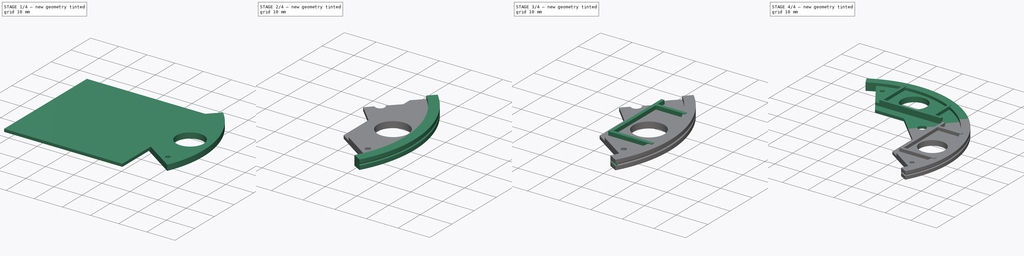
[diagram: build sequence overview — one tinted view per stage of 4, left to right]
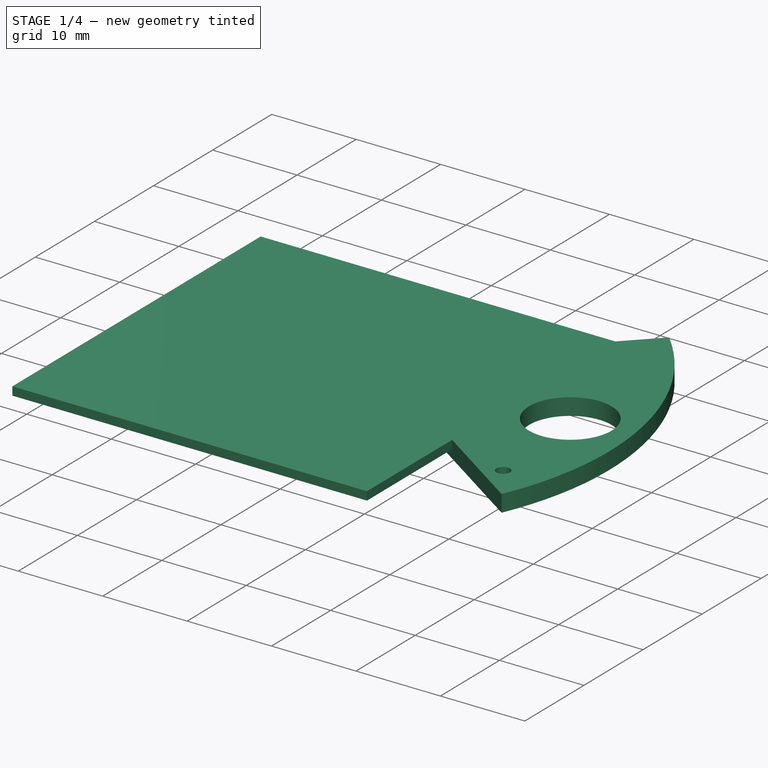
[diagram: stage 1 of 4 — iso view after this stage's code; geometry added in this stage tinted green]
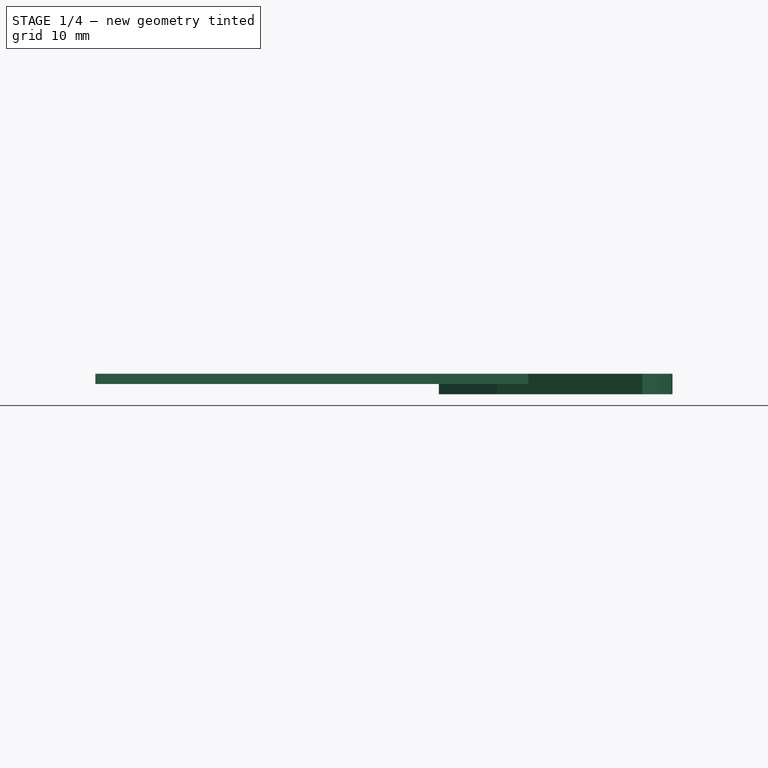
[diagram: stage 1 of 4 — front view after this stage's code; geometry added in this stage tinted green]
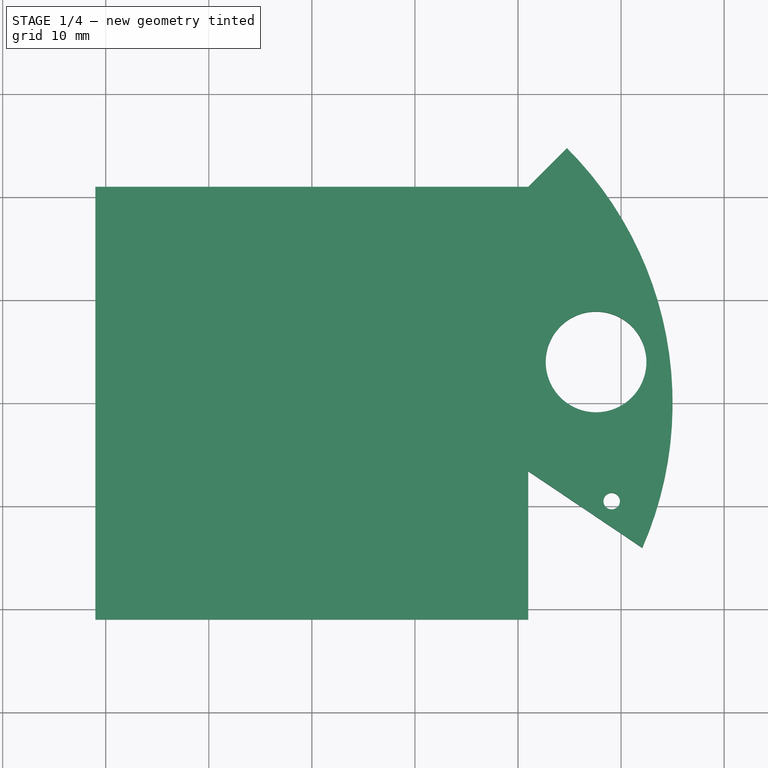
[diagram: stage 1 of 4 — top view after this stage's code; geometry added in this stage tinted green]
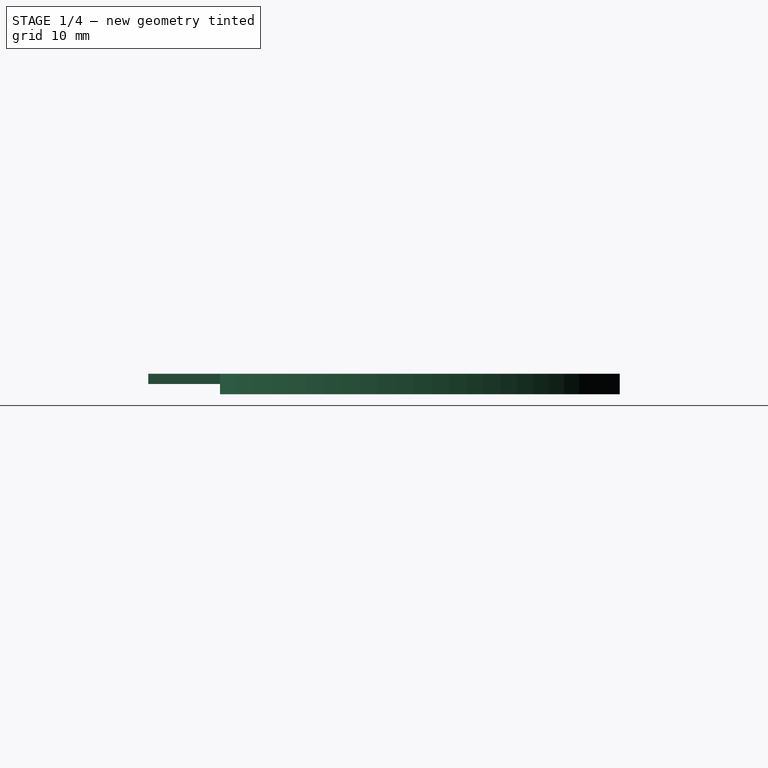
[diagram: stage 1 of 4 — right view after this stage's code; geometry added in this stage tinted green]
FCSTD DOCUMENT  (FreeCAD 0.16R6712 (Git))
Label: clicker3
License: All rights reserved
LicenseURL: http://en.wikipedia.org/wiki/All_rights_reserved
objects: Sketcher::SketchObject×6, PartDesign::Pad×3, Part::MultiFuse×2, Part::Sweep×1, Part::Cut×1, PartDesign::Pocket×1, Part::Mirroring×1
note: 19 computed .brp shape members not serialized (recipe doc carries the construction recipe); baked Part::Feature solids carry a one-line shape summary decoded from their .brp

FEATURE [Sketcher::SketchObject] Sketch003  label="support"
  sketch-geometry (13):
    g0: LineSegment [constr] StartX=-21 StartY=21 StartZ=0 EndX=21 EndY=21 EndZ=0
    g1: LineSegment [constr] StartX=21 StartY=21 StartZ=0 EndX=21 EndY=-21 EndZ=0
    g2: ArcOfCircle CenterX=0 CenterY=0 CenterZ=0 NormalX=0 NormalY=0 NormalZ=1 Radius=35 StartAngle=5.87062 EndAngle=7.06858
    g3: LineSegment StartX=32.0634 StartY=-14.0335 StartZ=0 EndX=18 EndY=-4.58453 EndZ=0
    g4: LineSegment StartX=18 StartY=-4.58453 StartZ=0 EndX=18 EndY=6.63604 EndZ=0
    g5: LineSegment StartX=24.7487 StartY=24.7487 StartZ=0 EndX=16.5607 EndY=16.5607 EndZ=0
    g6: ArcOfCircle CenterX=15.5 CenterY=15.5 CenterZ=0 NormalX=0 NormalY=0 NormalZ=1 Radius=1.5 StartAngle=3.92699 EndAngle=7.06858
    g7: LineSegment StartX=14.4393 StartY=14.4393 StartZ=0 EndX=12.318 EndY=12.318 EndZ=0
    g8: LineSegment [constr] StartX=16.5607 StartY=16.5607 StartZ=0 EndX=15.5 EndY=15.5 EndZ=0
    g9: LineSegment StartX=18 StartY=6.63604 StartZ=0 EndX=12.318 EndY=12.318 EndZ=0
    g10: LineSegment [constr] StartX=12.318 StartY=12.318 StartZ=0 EndX=0 EndY=0 EndZ=0
    g11: Circle CenterX=27.5756 CenterY=4 CenterZ=0 NormalX=0 NormalY=0 NormalZ=1 Radius=4.88561
    g12: Circle CenterX=29.0912 CenterY=-9.5051 CenterZ=0 NormalX=0 NormalY=0 NormalZ=1 Radius=0.8
  constraints (30):
    c: Coincident(g0,g1)
    c: Horizontal(g0)
    c: Symmetric(g0,g0,g-2)
    c: Symmetric(g0,g1,g-1)
    c: Equal(g0,g1)
    c: Coincident(g2,g-1)
    c: Radius(g2) = 35
    c: Coincident(g3,g2)
    c: DistanceX(g3,g1) = 3
    c: Vertical(g4)
    c: Coincident(g5,g2)
    c: Coincident(g6,g5)
    c: Radius(g6) = 1.5
    c: Coincident(g7,g6)
    c: Tangent(g5,g7)
    c: Coincident(g8,g5)
    c: Coincident(g8,g6)
    c: Tangent(g5,g8)
    c: DistanceX(g-1,g6) = 15.5
    c: Coincident(g3,g4)
    c: DistanceX(g-1,g0) = 21
    c: Coincident(g9,g4)
    c: Coincident(g7,g9)
    c: Coincident(g10,g7)
    c: Coincident(g10,g-1)
    c: Tangent(g10,g7)
    c: Angle(g-1,g10) = 0.785398
    c: Perpendicular(g10,g9)
    c: Distance(g7) = 3
    c: Radius(g12) = 0.8
FEATURE [PartDesign::Pad] Pad
  Length = 2
  Length2 = 100
  Reversed = true
  Sketch = -> Sketch003
  Type = 0
FEATURE [Sketcher::SketchObject] Sketch004
  sketch-geometry (4):
    g0: LineSegment StartX=-21 StartY=21 StartZ=0 EndX=21 EndY=21 EndZ=0
    g1: LineSegment StartX=21 StartY=21 StartZ=0 EndX=21 EndY=-21 EndZ=0
    g2: LineSegment StartX=21 StartY=-21 StartZ=0 EndX=-21 EndY=-21 EndZ=0
    g3: LineSegment StartX=-21 StartY=-21 StartZ=0 EndX=-21 EndY=21 EndZ=0
  constraints (12):
    c: Coincident(g0,g1)
    c: Coincident(g1,g2)
    c: Coincident(g2,g3)
    c: Coincident(g3,g0)
    c: Horizontal(g0)
    c: Horizontal(g2)
    c: Vertical(g1)
    c: Vertical(g3)
    c: Equal(g1,g2)
    c: Symmetric(g0,g0,g-2)
    c: Symmetric(g0,g1,g-1)
    c: DistanceX(g0,g0) = 42
FEATURE [PartDesign::Pad] Pad001
  Length = 1
  Length2 = 100
  Reversed = true
  Sketch = -> Sketch004
  Type = 0
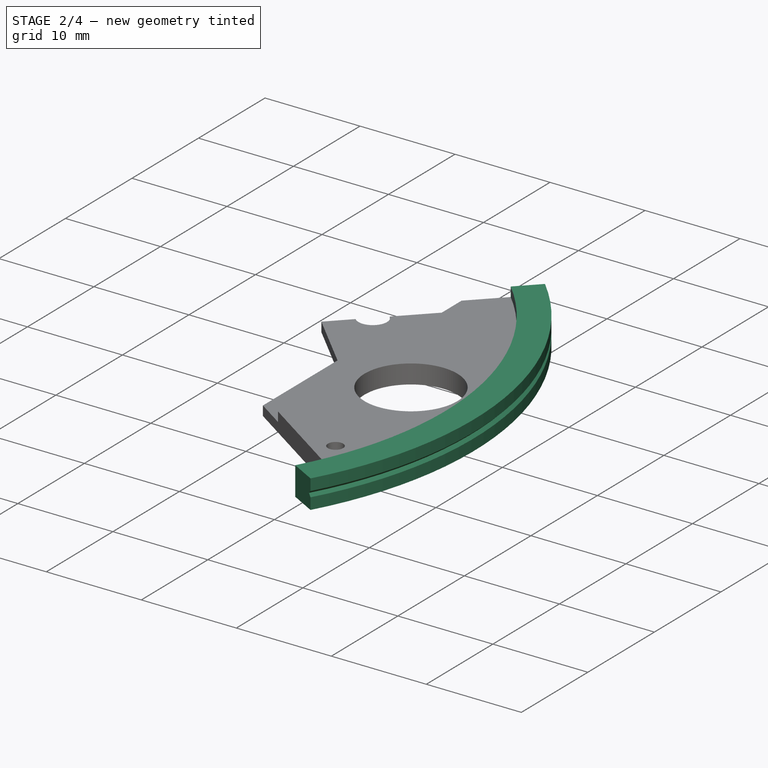
[diagram: stage 2 of 4 — iso view after this stage's code; geometry added in this stage tinted green]
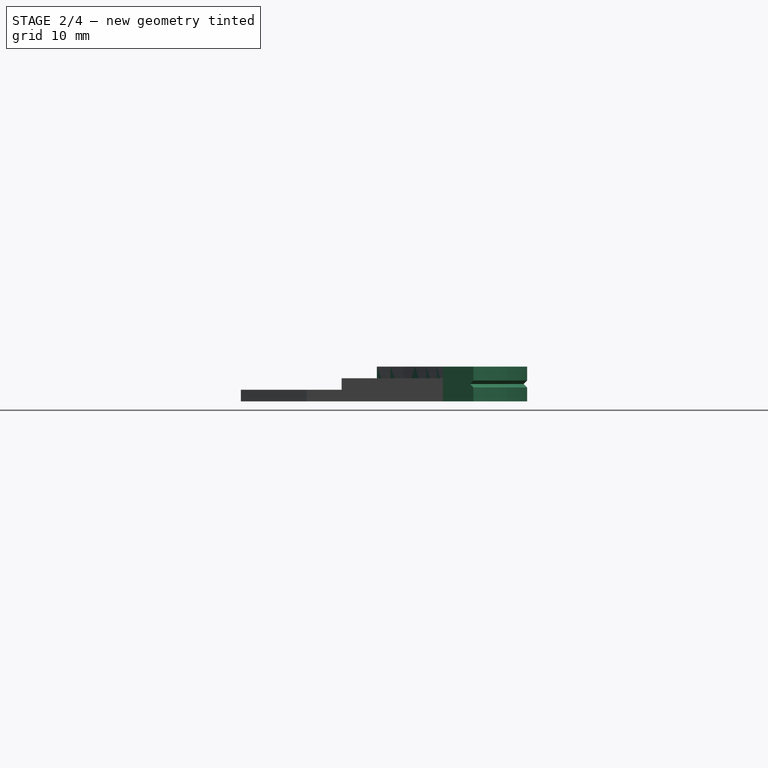
[diagram: stage 2 of 4 — front view after this stage's code; geometry added in this stage tinted green]
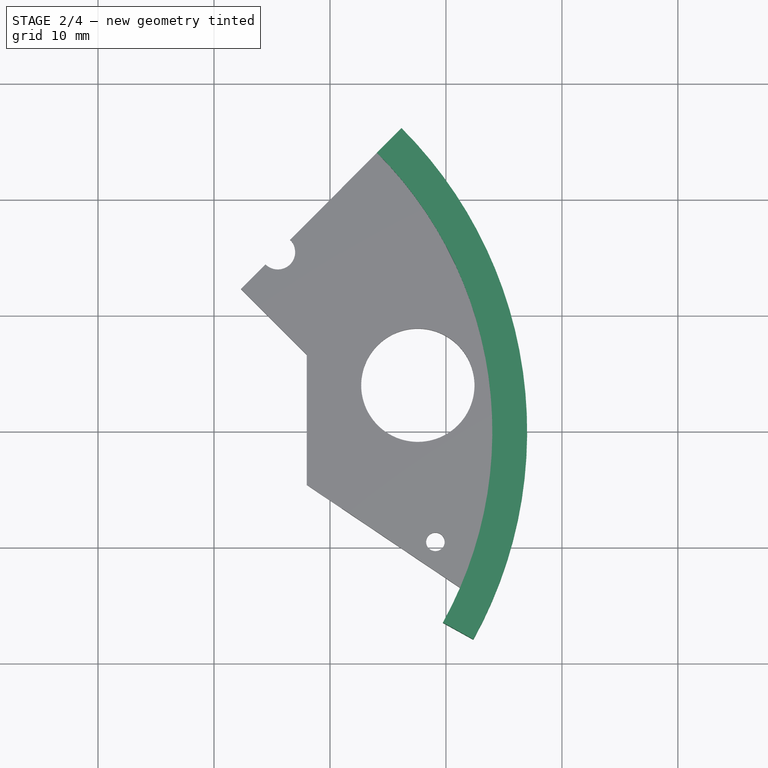
[diagram: stage 2 of 4 — top view after this stage's code; geometry added in this stage tinted green]
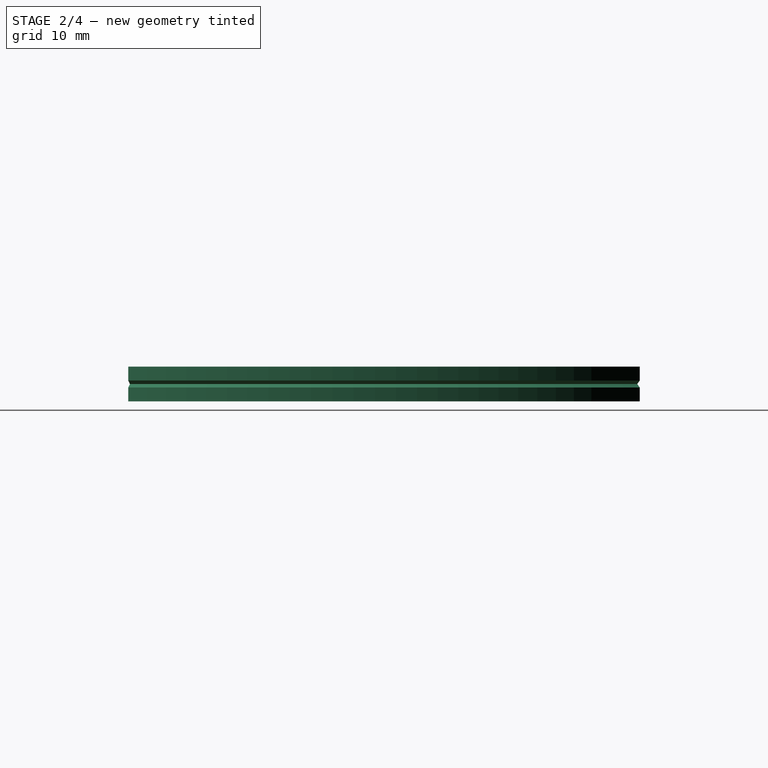
[diagram: stage 2 of 4 — right view after this stage's code; geometry added in this stage tinted green]
FEATURE [Sketcher::SketchObject] Sketch002
  sketch-geometry (9):
    g0: LineSegment [constr] StartX=-20.5 StartY=20.5 StartZ=0 EndX=20.5 EndY=20.5 EndZ=0
    g1: LineSegment [constr] StartX=20.5 StartY=20.5 StartZ=0 EndX=20.5 EndY=-20.5 EndZ=0
    g2: LineSegment [constr] StartX=20.5 StartY=-20.5 StartZ=0 EndX=-20.5 EndY=-20.5 EndZ=0
    g3: LineSegment [constr] StartX=-20.5 StartY=-20.5 StartZ=0 EndX=-20.5 EndY=20.5 EndZ=0
    g4: Circle [constr] CenterX=0 CenterY=0 CenterZ=0 NormalX=0 NormalY=0 NormalZ=1 Radius=8.5
    g5: ArcOfCircle CenterX=0 CenterY=0 CenterZ=0 NormalX=0 NormalY=0 NormalZ=1 Radius=35 StartAngle=5.77704 EndAngle=7.06858
    g6: LineSegment [constr] StartX=20.5 StartY=20.5 StartZ=0 EndX=6.82454 EndY=6.82454 EndZ=0
    g7: LineSegment [constr] StartX=0 StartY=0 StartZ=0 EndX=24.7487 EndY=24.7487 EndZ=0
    g8: LineSegment [constr] StartX=0 StartY=0 StartZ=0 EndX=30.6117 EndY=-16.9683 EndZ=0
  constraints (24):
    c: Coincident(g0,g1)
    c: Coincident(g1,g2)
    c: Coincident(g2,g3)
    c: Coincident(g3,g0)
    c: Horizontal(g0)
    c: Horizontal(g2)
    c: Vertical(g1)
    c: Vertical(g3)
    c: Symmetric(g0,g0,g-2)
    c: Symmetric(g0,g1,g-1)
    c: Equal(g0,g1)
    c: DistanceY(g3,g3) = 41
    c: Coincident(g4,g-1)
    c: Radius(g4) = 8.5
    c: Coincident(g5,g-1)
    c: Radius(g5) = 35
    c: Coincident(g6,g0)
    c: Angle(g6,g1) = 0.785398
    c: Coincident(g7,g-1)
    c: Coincident(g7,g5)
    c: Angle(g-1,g7) = 0.785398
    c: Coincident(g8,g-1)
    c: Coincident(g8,g5)
    c: Angle(g8,g-1) = 0.506145
FEATURE [Sketcher::SketchObject] Sketch
  Placement = pos=(0,0,-2) rot=(-1,0,0;4.71239rad)
  sketch-geometry (8):
    g0: LineSegment StartX=34 StartY=3 StartZ=0 EndX=37 EndY=3 EndZ=0
    g1: LineSegment StartX=37 StartY=0 StartZ=0 EndX=34 EndY=0 EndZ=0
    g2: LineSegment StartX=37 StartY=1.8 StartZ=0 EndX=37 EndY=3 EndZ=0
    g3: LineSegment StartX=37 StartY=1.8 StartZ=0 EndX=36.7 EndY=1.5 EndZ=0
    g4: LineSegment StartX=36.7 StartY=1.5 StartZ=0 EndX=37 EndY=1.2 EndZ=0
    g5: LineSegment StartX=37 StartY=0 StartZ=0 EndX=37 EndY=1.2 EndZ=0
    g6: LineSegment [constr] StartX=37 StartY=1.8 StartZ=0 EndX=37 EndY=1.2 EndZ=0
    g7: LineSegment StartX=34 StartY=3 StartZ=0 EndX=34 EndY=0 EndZ=0
  constraints (22):
    c: Horizontal(g0)
    c: Horizontal(g1)
    c: PointOnObject(g1,g-1)
    c: DistanceX(g-1,g1) = 37
    c: DistanceY(g1,g0) = 3
    c: Vertical(g2)
    c: Coincident(g4,g3)
    c: DistanceX(g0,g0) = 3
    c: Coincident(g5,g1)
    c: Coincident(g5,g4)
    c: Vertical(g5)
    c: Coincident(g3,g2)
    c: Coincident(g6,g2)
    c: Coincident(g6,g4)
    c: Vertical(g6)
    c: Coincident(g7,g0)
    c: Vertical(g7)
    c: Coincident(g7,g1)
    c: Coincident(g0,g2)
    c: Equal(g2,g5)
    c: DistanceY(g6,g6) = 0.6
    c: Perpendicular(g4,g3)
FEATURE [Part::Sweep] Sweep
  Frenet = false
  Sections = -> [Sketch]
  Solid = true
  Spine = -> Sketch002 [Edge1]
  Transition = 1
FEATURE [Part::Cut] Cut
  Base = -> Pad
  Tool = -> Pad001
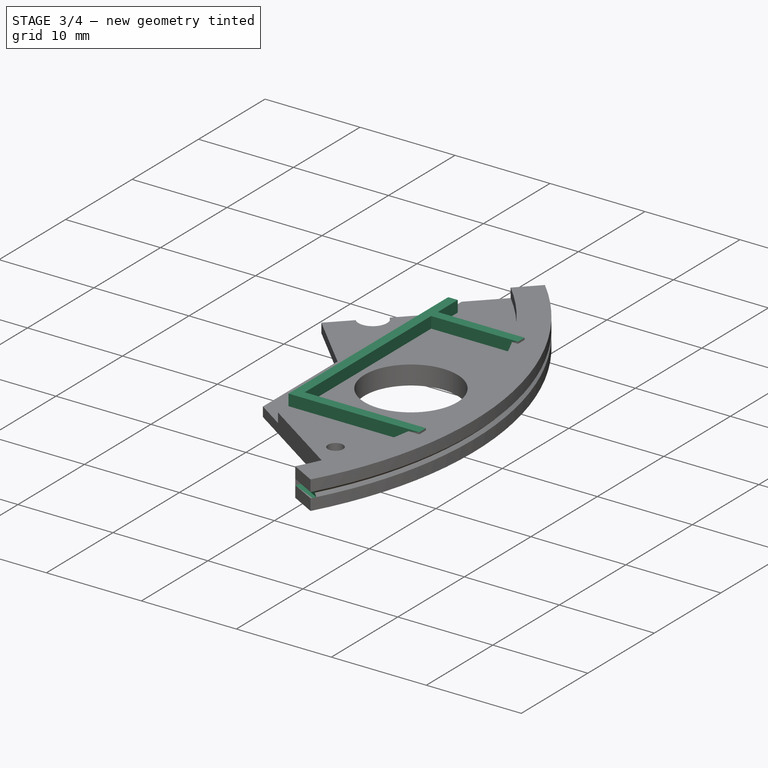
[diagram: stage 3 of 4 — iso view after this stage's code; geometry added in this stage tinted green]
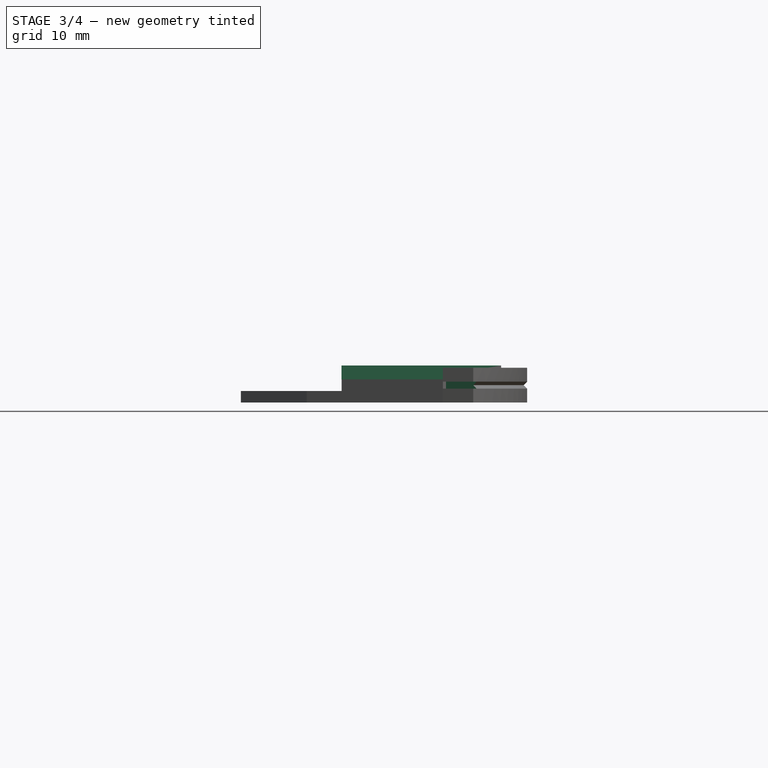
[diagram: stage 3 of 4 — front view after this stage's code; geometry added in this stage tinted green]
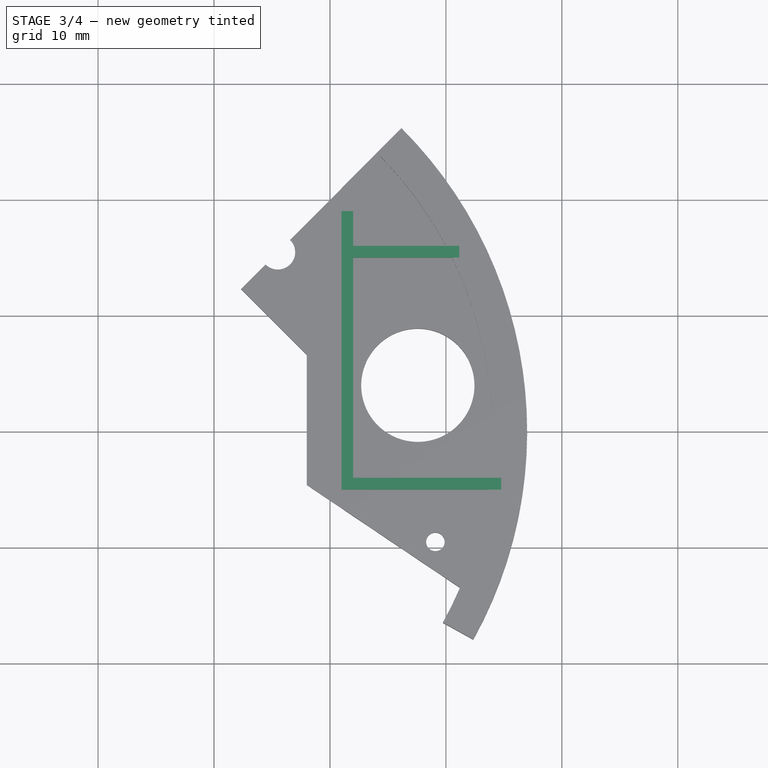
[diagram: stage 3 of 4 — top view after this stage's code; geometry added in this stage tinted green]
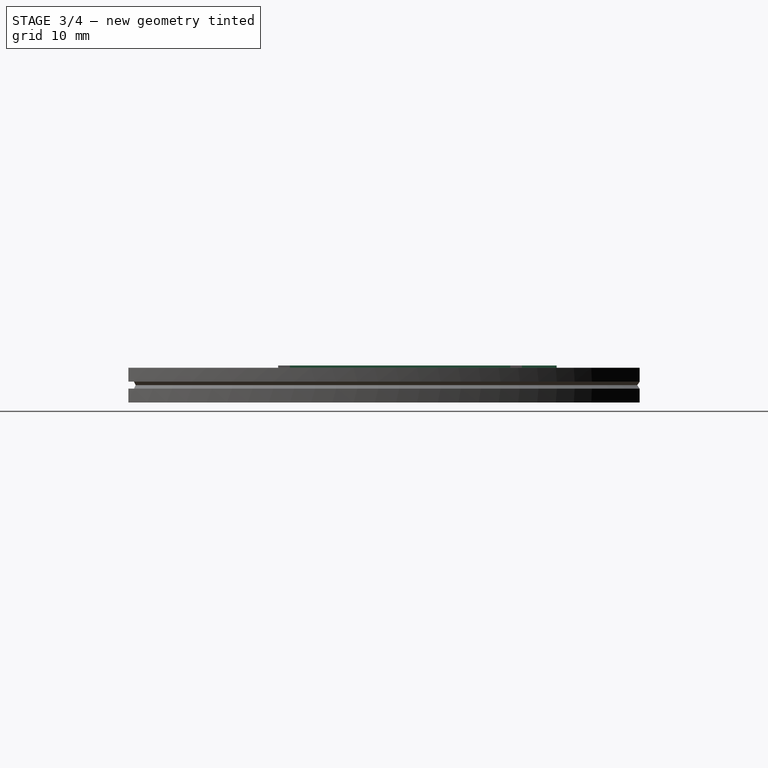
[diagram: stage 3 of 4 — right view after this stage's code; geometry added in this stage tinted green]
FEATURE [Part::MultiFuse] Fusion
  Shapes = -> [Cut,Sweep]
FEATURE [Sketcher::SketchObject] Sketch007
  Support = -> Fusion [Face6]
  sketch-geometry (10):
    g0: LineSegment StartX=20.9986 StartY=18.9984 StartZ=0 EndX=22 EndY=18.9984 EndZ=0
    g1: LineSegment StartX=22 StartY=14.9997 StartZ=0 EndX=22 EndY=-4 EndZ=0
    g2: LineSegment StartX=20.9986 StartY=-5.02145 StartZ=0 EndX=20.9986 EndY=18.9984 EndZ=0
    g3: LineSegment StartX=34.7616 StartY=-4 StartZ=0 EndX=22 EndY=-4 EndZ=0
    g4: LineSegment StartX=20.9986 StartY=-5.02145 StartZ=0 EndX=34.7616 EndY=-5.02145 EndZ=0
    g5: LineSegment StartX=34.7616 StartY=-5.02145 StartZ=0 EndX=34.7616 EndY=-4 EndZ=0
    g6: LineSegment StartX=22 StartY=18.9984 StartZ=0 EndX=22 EndY=16 EndZ=0
    g7: LineSegment StartX=22 StartY=16 StartZ=0 EndX=31.1468 EndY=16 EndZ=0
    g8: LineSegment StartX=31.1468 StartY=16 StartZ=0 EndX=31.1468 EndY=14.9997 EndZ=0
    g9: LineSegment StartX=31.1468 StartY=14.9997 StartZ=0 EndX=22 EndY=14.9997 EndZ=0
  constraints (19):
    c: Coincident(g2,g0)
    c: Horizontal(g0)
    c: Vertical(g1)
    c: Vertical(g2)
    c: Coincident(g4,g5)
    c: Coincident(g5,g3)
    c: Horizontal(g3)
    c: Horizontal(g4)
    c: Vertical(g5)
    c: Coincident(g4,g2)
    c: Coincident(g3,g1)
    c: Vertical(g6)
    c: Coincident(g7,g8)
    c: Coincident(g8,g9)
    c: Horizontal(g7)
    c: Horizontal(g9)
    c: Vertical(g8)
    c: Coincident(g6,g7)
    c: Coincident(g9,g1)
FEATURE [PartDesign::Pad] Pad002
  Length = 1.2
  Length2 = 100
  Sketch = -> Sketch007
  Type = 0
FEATURE [Sketcher::SketchObject] Sketch008
  Placement = pos=(0,0,0) rot=(0.939157,-0.242883,-0.242883;1.63353rad)
  Support = -> Pad002 [Face21]
  sketch-geometry (4):
    g0: LineSegment StartX=37 StartY=-0.8 StartZ=0 EndX=34 EndY=-0.8 EndZ=0
    g1: LineSegment StartX=34 StartY=-0.8 StartZ=0 EndX=34 EndY=-0.2 EndZ=0
    g2: LineSegment StartX=34 StartY=-0.2 StartZ=0 EndX=37 EndY=-0.2 EndZ=0
    g3: LineSegment StartX=37 StartY=-0.2 StartZ=0 EndX=37 EndY=-0.8 EndZ=0
  constraints (9):
    c: Coincident(g0,g1)
    c: Coincident(g1,g2)
    c: Coincident(g2,g3)
    c: Coincident(g3,g0)
    c: Horizontal(g0)
    c: Horizontal(g2)
    c: Vertical(g1)
    c: Vertical(g3)
    c: DistanceY(g3,g3) = 0.6
FEATURE [PartDesign::Pocket] Pocket
  Length = 0.56
  Sketch = -> Sketch008
  Type = 0
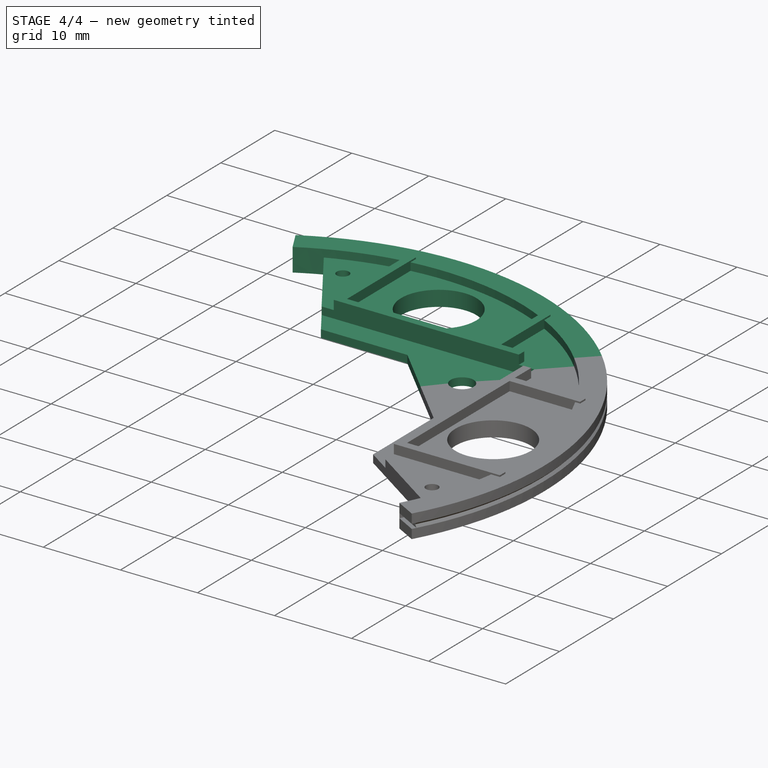
[diagram: stage 4 of 4 — iso view after this stage's code; geometry added in this stage tinted green]
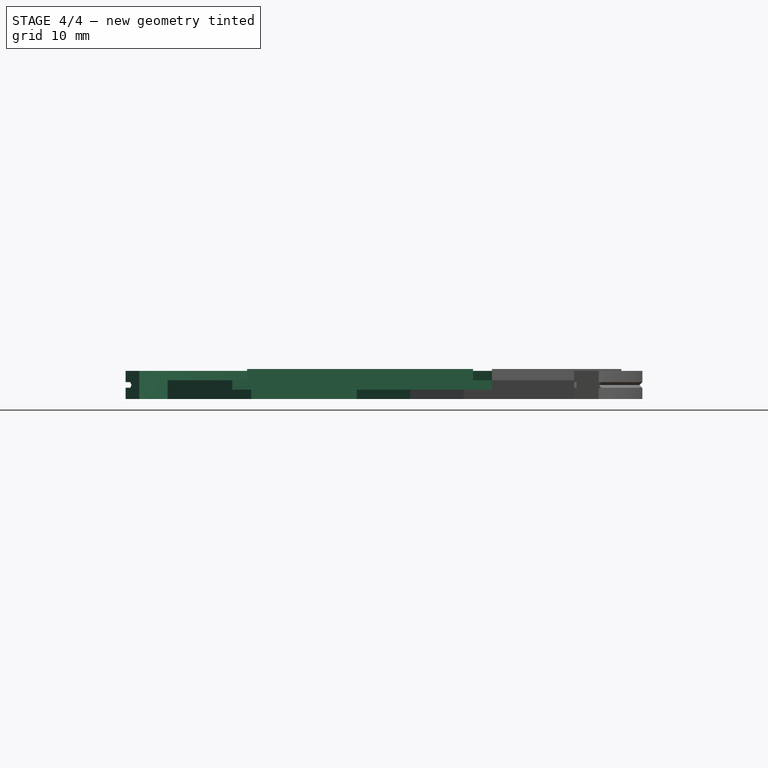
[diagram: stage 4 of 4 — front view after this stage's code; geometry added in this stage tinted green]
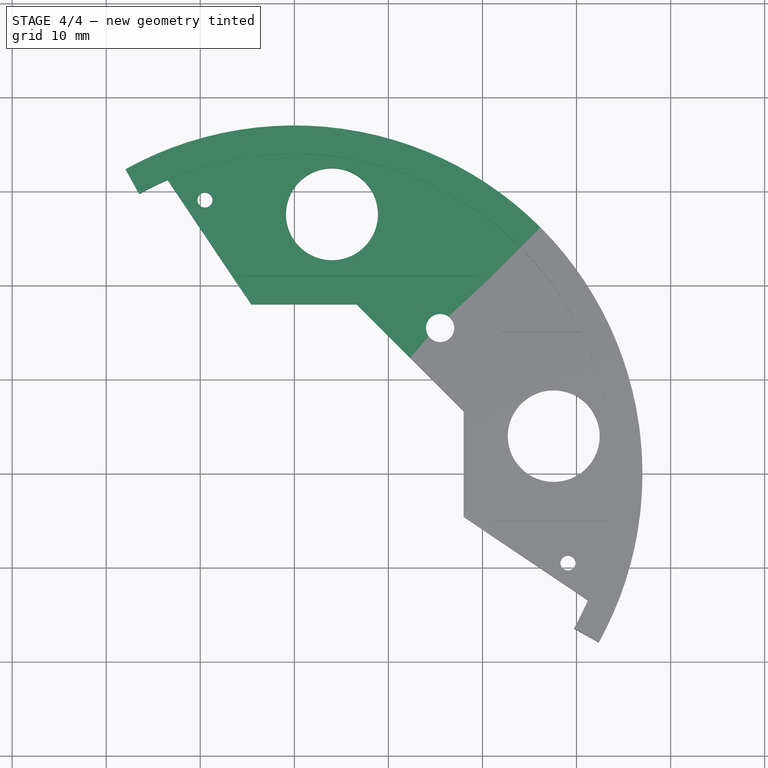
[diagram: stage 4 of 4 — top view after this stage's code; geometry added in this stage tinted green]
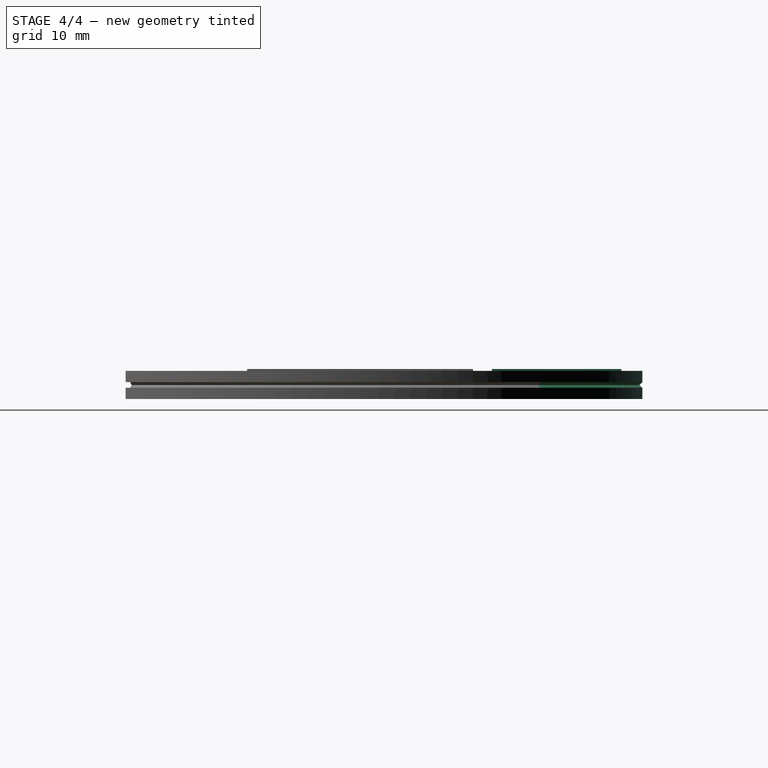
[diagram: stage 4 of 4 — right view after this stage's code; geometry added in this stage tinted green]
FEATURE [Part::Mirroring] Part__Mirroring  label="Pocket (Mirror #1)"
  Base = (0,0,0)
  Normal = (0,1,0)
  Placement = pos=(0,0,0) rot=(0,0,1;1.5708rad)
  Source = -> Pocket
FEATURE [Part::MultiFuse] Fusion001
  Shapes = -> [Part__Mirroring,Pocket]
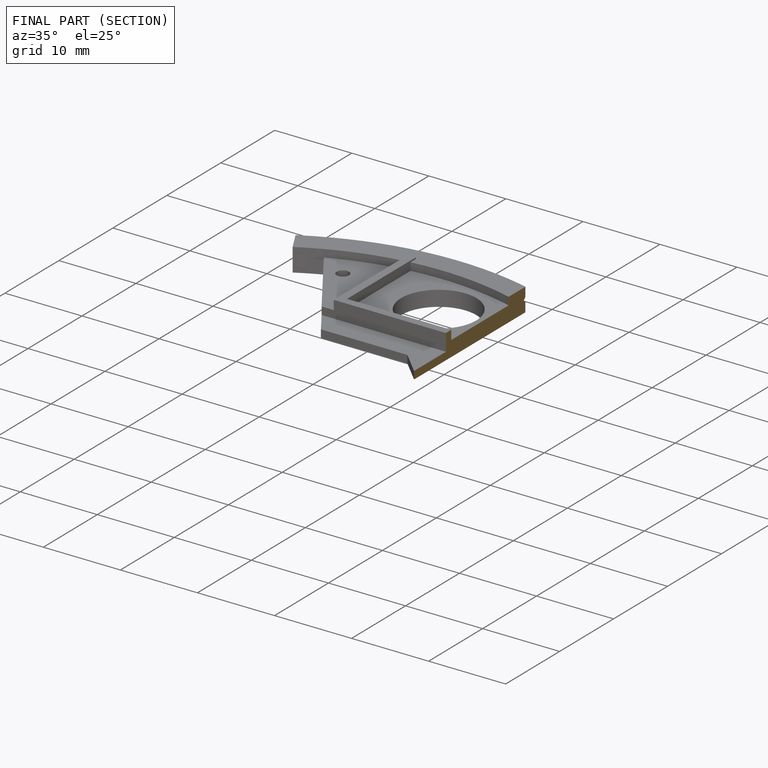
[diagram: finished part — half-section view (interior)]
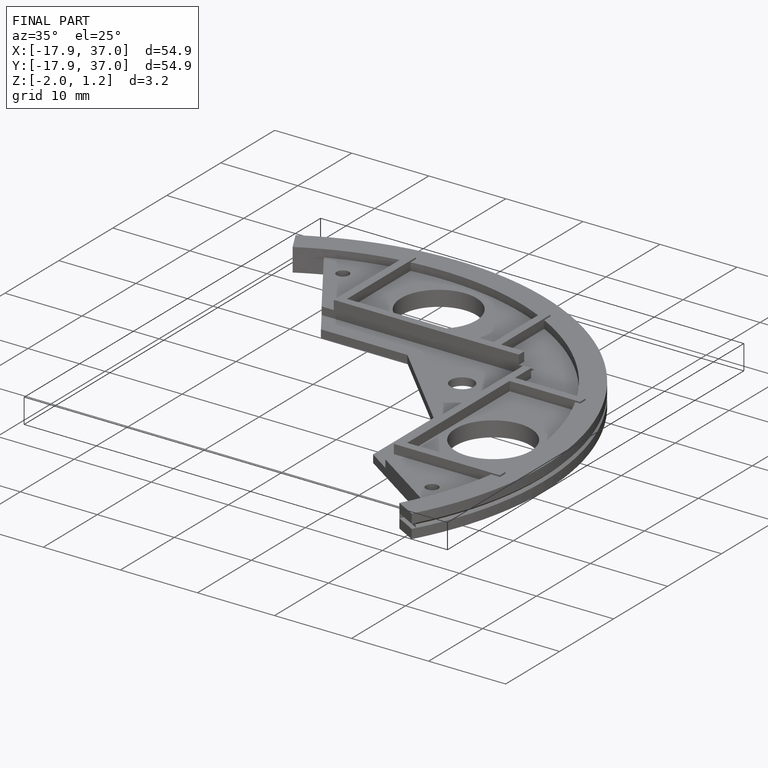
[diagram: finished part — iso view with bounding-box wireframe]
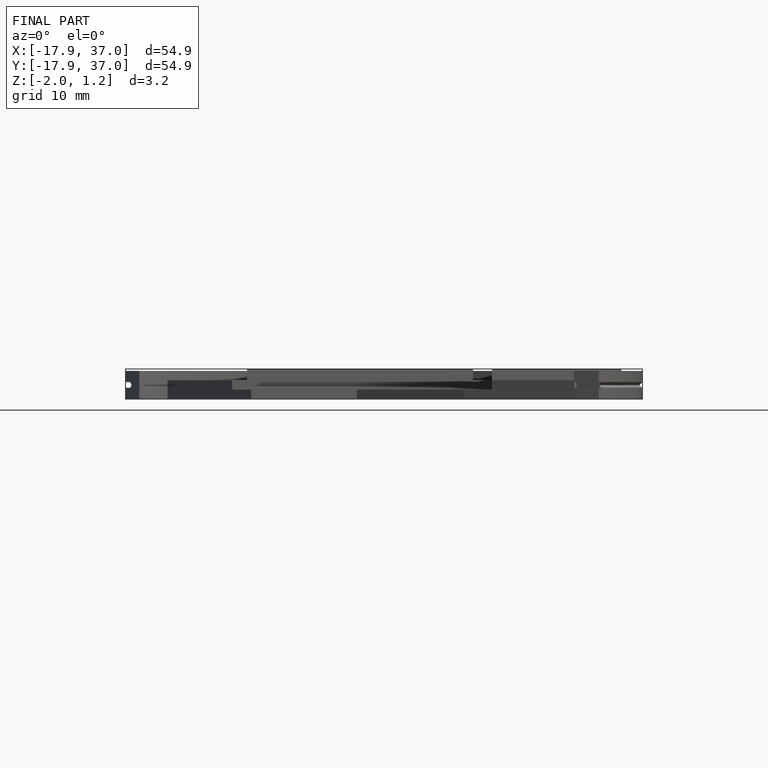
[diagram: finished part — front view with bounding-box wireframe]
